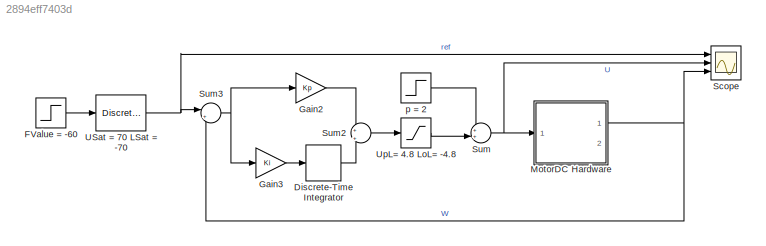
MODEL slx_2894eff7403d
KIND model
CONFIG AbsTol = auto
CONFIG EnableMultiTasking = on
CONFIG FixedStep = auto
CONFIG MaxStep = auto
CONFIG MinStep = auto
CONFIG PostLoadFcn = try, \ncodertarget.arduinobase.registry.setBaudRate(gcs,115200)\ndisp('baud rate set to 115200 for external mode hardware serial')\nbaudrate='set_to_115200'\ncatch\ndisp('baud rate setting not needed in this version')\nend
CONFIG RelTol = 1e-3
CONFIG SampleTimeConstraint = Unconstrained
CONFIG SolverName = ode45
CONFIG StartTime = 0.0
CONFIG StopTime = 10.0
BLOCK [DiscreteIntegrator] Discrete-Time Integrator
  ICPrevOutput = DiscIntNeverNeededParam
  ICPrevScaledInput = DiscIntNeverNeededParam
  InitialConditionSetting = Auto
  Ports = [1, 1]
  SampleTime = h
BLOCK [Step] FValue = -60
  After = -60
  SampleTime = 0
BLOCK [Gain] Gain2
  Gain = Kp
BLOCK [Gain] Gain3
  Gain = Ki
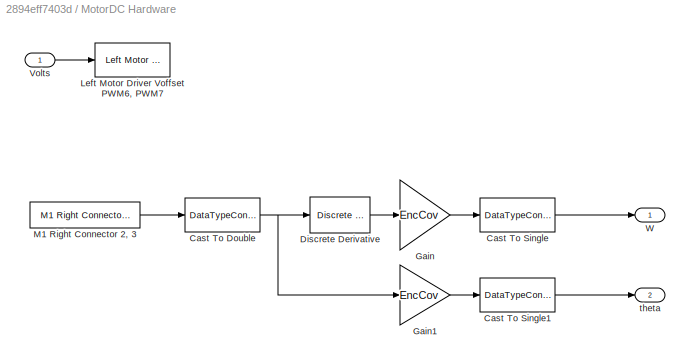
BLOCK [SubSystem] MotorDC Hardware
  Ports = [1, 2]
  RequestExecContextInheritance = off
BLOCK [DataTypeConversion] MotorDC Hardware/Cast To Double
  OutDataTypeStr = double
  RndMeth = Floor
  SaturateOnIntegerOverflow = off
BLOCK [DataTypeConversion] MotorDC Hardware/Cast To Single
  OutDataTypeStr = single
  RndMeth = Floor
  SaturateOnIntegerOverflow = off
BLOCK [DataTypeConversion] MotorDC Hardware/Cast To Single1
  OutDataTypeStr = single
  RndMeth = Floor
  SaturateOnIntegerOverflow = off
BLOCK [Reference] MotorDC Hardware/Discrete Derivative  REF=simulink/Discrete/Discrete Derivative
  Ports = [1, 1]
  SourceBlock = simulink/Discrete/Discrete Derivative
  SourceProductBaseCode = SL
  SourceType = Discrete Derivative
BLOCK [Gain] MotorDC Hardware/Gain
  Gain = EncCov
BLOCK [Gain] MotorDC Hardware/Gain1
  Gain = EncCov
BLOCK [Reference] MotorDC Hardware/Left Motor Driver Voffset PWM6, PWM7  REF=MinSegLibrary_M2V5/Left Motor Driver
Voffset PWM6, PWM7
  Ports = [1]
  SourceBlock = MinSegLibrary_M2V5/Left Motor Driver\nVoffset PWM6, PWM7
  SourceProductName = Rensselaer Arduino Support Package
BLOCK [Reference] MotorDC Hardware/M1 Right Connector 2, 3  REF=MinSegLibrary_M2V5/M1 Right Connector 2, 3
  Ports = [0, 1]
  SourceBlock = MinSegLibrary_M2V5/M1 Right Connector 2, 3
  SourceProductName = Rensselaer Arduino Support Package
  SourceType = Encoder_arduino
BLOCK [Inport] MotorDC Hardware/Volts
BLOCK [Outport] MotorDC Hardware/W
BLOCK [Outport] MotorDC Hardware/theta
  Port = 2
BLOCK [Scope] Scope
  Floating = off
  NumInputPorts = 3
  Ports = [3]
  ScopeSpecificationString = Simulink.scopes.TimeScopeBlockCfg('CurrentConfiguration', extmgr.ConfigurationSet(extmgr.Configuration('Core','General UI',true,'FigureColor',[1 1 1]),extmgr.Configuration('Core','Source UI',true),extmgr.Configuration('Sources','WiredSimulink',true,'DataLogging',true,'DataLoggingSaveFormat','StructureWithTime'),extmgr.Configuration('Visuals','Time Domain',true,'SerializedDisplays',{struct('MinYLim...<+1796ch>
BLOCK [Sum] Sum
  Inputs = ++|
  Ports = [2, 1]
BLOCK [Sum] Sum2
  Inputs = +|+
  Ports = [2, 1]
BLOCK [Sum] Sum3
  Inputs = |+-
  Ports = [2, 1]
BLOCK [DiscreteIntegrator] USat = 70 LSat = -70
  ICPrevOutput = DiscIntNeverNeededParam
  ICPrevScaledInput = DiscIntNeverNeededParam
  InitialConditionSetting = Auto
  LimitOutput = on
  LowerSaturationLimit = -70
  Ports = [1, 1]
  SampleTime = h
  UpperSaturationLimit = 70
BLOCK [Saturate] UpL= 4.8 LoL= -4.8
  LowerLimit = -4.8
  UpperLimit = 4.8
BLOCK [Step] p = 2
  After = 2
  SampleTime = 0
  Time = 5
LINE Discrete-Time Integrator:1 -> Sum2:2
LINE FValue = -60:1 -> USat = 70 LSat = -70:1
LINE Gain2:1 -> Sum2:1
LINE Gain3:1 -> Discrete-Time Integrator:1
NET MotorDC Hardware/Cast To Double:1 -> MotorDC Hardware/Discrete Derivative:1, MotorDC Hardware/Gain1:1
LINE MotorDC Hardware/Cast To Single1:1 -> MotorDC Hardware/theta:1
LINE MotorDC Hardware/Cast To Single:1 -> MotorDC Hardware/W:1
LINE MotorDC Hardware/Discrete Derivative:1 -> MotorDC Hardware/Gain:1
LINE MotorDC Hardware/Gain1:1 -> MotorDC Hardware/Cast To Single1:1
LINE MotorDC Hardware/Gain:1 -> MotorDC Hardware/Cast To Single:1
LINE MotorDC Hardware/M1 Right Connector 2, 3:1 -> MotorDC Hardware/Cast To Double:1
LINE MotorDC Hardware/Volts:1 -> MotorDC Hardware/Left Motor Driver Voffset PWM6, PWM7:1
NET MotorDC Hardware:1 -> Scope:3, Sum3:2
LINE Sum2:1 -> UpL= 4.8 LoL= -4.8:1
NET Sum3:1 -> Gain2:1, Gain3:1
NET Sum:1 -> MotorDC Hardware:1, Scope:2
NET USat = 70 LSat = -70:1 -> Scope:1, Sum3:1
LINE UpL= 4.8 LoL= -4.8:1 -> Sum:2
LINE p = 2:1 -> Sum:1
note: NET lines group one-source signal fan-out (src -> all destinations, sorted); 1:1 wires keep LINE
